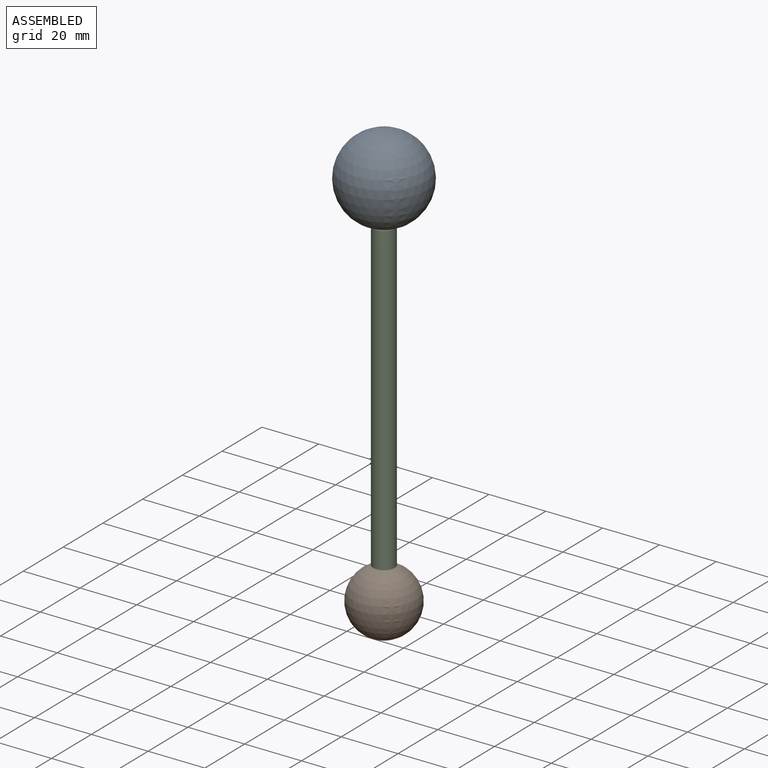
[diagram: assembled view]
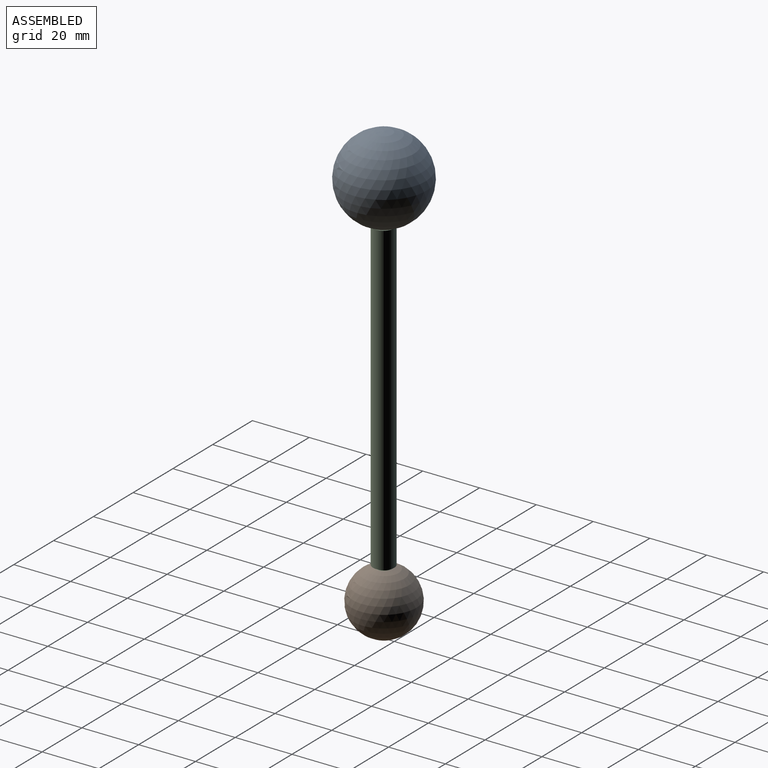
[diagram: assembled view, second angle]
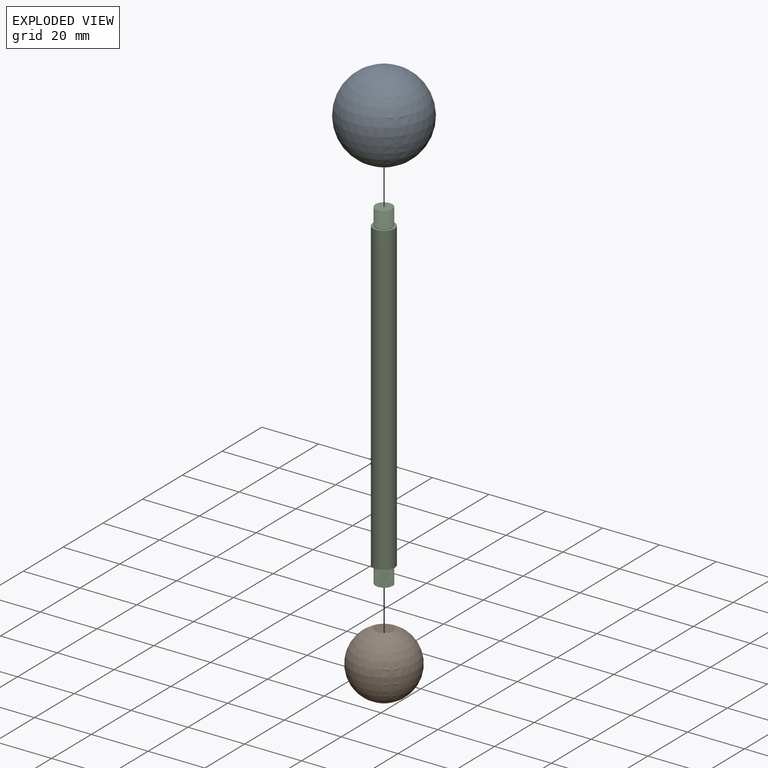
[diagram: exploded view]
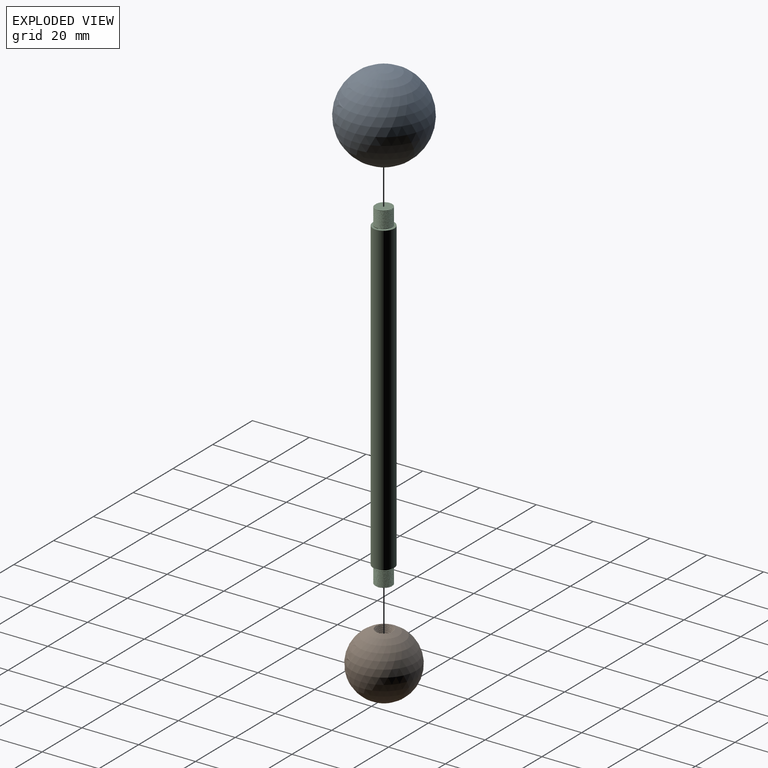
[diagram: exploded view, second angle]
ASSEMBLY  parts=3 mates=2
PART A: 19 faces, bbox 30x30x29.9 mm
  f0: cylinder r=3mm len=6mm, axis (0,0,1), area 5.8mm2, adj f1,f15,f16,f18
  f1: cylinder r=3mm len=6mm, axis (0,0,1), area 2.6mm2, adj f0,f2,f16,f17
  f2: cylinder r=3mm len=6mm, axis (0,0,1), area 2.6mm2, adj f1,f3,f16,f17
  f3: cylinder r=3mm len=6mm, axis (0,0,1), area 2.6mm2, adj f2,f4,f16,f17
  f4: cylinder r=3mm len=6mm, axis (0,0,1), area 2.6mm2, adj f3,f5,f16,f17
  f5: cylinder r=3mm len=6mm, axis (0,0,1), area 2.6mm2, adj f4,f6,f16,f17
  f6: cylinder r=3mm len=6mm, axis (0,0,1), area 2.6mm2, adj f5,f7,f16,f17
  f7: cylinder r=3mm len=6mm, axis (0,0,1), area 2.6mm2, adj f6,f8,f16,f17
  f8: cylinder r=3mm len=6mm, axis (0,0,1), area 2.6mm2, adj f7,f9,f16,f17
  f9: cylinder r=3mm len=6mm, axis (0,0,1), area 2.6mm2, adj f8,f10,f16,f17
  f10: cylinder r=3mm len=6mm, axis (0,0,1), area 2.6mm2, adj f9,f11,f16,f17
  f11: cylinder r=3mm len=6mm, axis (0,0,1), area 2.6mm2, adj f10,f12,f16,f17
  f12: cylinder r=3mm len=6mm, axis (0,0,1), area 2.4mm2, adj f11,f13,f14,f16,f17
  f13: cylinder r=3mm len=1.95mm, axis (0,0,1), area 0.1mm2, adj f12,f14,f17
  f14: sphere r=15mm, area 2797.1mm2, adj f12,f13,f16,f17
  f15: plane 6x6mm, normal (0,0,-1), area 28.3mm2, adj f0
  f16: bspline ~7.53x6.52mm, area 74.3mm2, adj f0,f1,f2,f3,f4,f5,f6,f7
  f17: bspline ~7.53x6.52mm, area 72.1mm2, adj f1,f2,f3,f4,f5,f6,f7,f8
  f18: plane 0.3x0.26mm, normal (0,-1,0), area 0mm2, adj f0,f16,f17
PART B: 18 faces, bbox 23x23x22.8 mm
  f0: cylinder r=3mm len=6mm, axis (0,0,1), area 7.5mm2, adj f1,f14,f15,f17
  f1: cylinder r=3mm len=6mm, axis (0,0,1), area 2.5mm2, adj f0,f2,f15,f16
  f2: cylinder r=3mm len=6mm, axis (0,0,1), area 2.5mm2, adj f1,f3,f15,f16
  f3: cylinder r=3mm len=6mm, axis (0,0,1), area 2.5mm2, adj f2,f4,f15,f16
  f4: cylinder r=3mm len=6mm, axis (0,0,1), area 2.5mm2, adj f3,f5,f15,f16
  f5: cylinder r=3mm len=6mm, axis (0,0,1), area 2.5mm2, adj f4,f6,f15,f16
  f6: cylinder r=3mm len=6mm, axis (0,0,1), area 2.5mm2, adj f5,f7,f15,f16
  f7: cylinder r=3mm len=6mm, axis (0,0,1), area 2.5mm2, adj f6,f8,f15,f16
  f8: cylinder r=3mm len=6mm, axis (0,0,1), area 2.5mm2, adj f7,f9,f15,f16
  f9: cylinder r=3mm len=6mm, axis (0,0,1), area 2.5mm2, adj f8,f10,f15,f16
  f10: cylinder r=3mm len=6mm, axis (0,0,1), area 2.5mm2, adj f9,f11,f15,f16
  f11: cylinder r=3mm len=6mm, axis (0,0,1), area 2.5mm2, adj f10,f12,f15,f16
  f12: cylinder r=3mm len=6mm, axis (0,0,1), area 1.8mm2, adj f11,f13,f15,f16
  f13: sphere r=11.5mm, area 1631.3mm2, adj f12,f15,f16
  f14: plane 6x6mm, normal (0,0,-1), area 28.3mm2, adj f0
  f15: bspline ~7.53x6.52mm, area 72.6mm2, adj f0,f1,f2,f3,f4,f5,f6,f7
  f16: bspline ~7.53x6.52mm, area 70.6mm2, adj f1,f2,f3,f4,f5,f6,f7,f8
  f17: plane 0.3x0.26mm, normal (0,-1,0), area 0mm2, adj f0,f15,f16
PART C: 17 faces, bbox 7.6x7.6x120.4 mm
  f0: plane 6.13x5.92mm, normal (0,0,1), area 27mm2, adj f2,f4,f6,f8
  f1: cylinder r=3.75mm len=108mm, axis (0,0,-1), area 2544.7mm2, adj f3,f11
  f2: cylinder r=3mm len=6mm, axis (0,0,1), area 41.9mm2, adj f0,f3,f4,f5,f6,f8
  f3: plane 7.5x7.5mm, normal (0,0,1), area 15.9mm2, adj f1,f2,f7
  f4: plane 0.11x0.07mm, normal (0,-1,0), area 0mm2, adj f0,f2,f6
  f5: plane 0.3x0.25mm, normal (0,1,0), area 0mm2, adj f2,f6,f7,f8
  f6: bspline ~6.93x6.17mm, area 70.4mm2, adj f0,f2,f4,f5,f7,f8
  f7: cylinder r=3mm len=2.51mm, axis (0,0,-1), area 0.1mm2, adj f3,f5,f6
  f8: bspline ~6.93x6.05mm, area 63.6mm2, adj f0,f2,f5,f6
  f9: plane 6.13x5.92mm, normal (0,0,-1), area 27mm2, adj f10,f12,f14,f16
  f10: cylinder r=3mm len=6mm, axis (0,0,-1), area 44.4mm2, adj f9,f11,f12,f13,f14,f16
  f11: plane 7.5x7.5mm, normal (0,0,-1), area 15.9mm2, adj f1,f10,f15
  f12: plane 0.11x0.07mm, normal (0,-1,0), area 0mm2, adj f9,f10,f14
  f13: plane 0.3x0.25mm, normal (0,1,0), area 0mm2, adj f10,f14,f15,f16
  f14: bspline ~6.93x6.17mm, area 70.4mm2, adj f9,f10,f12,f13,f15,f16
  f15: cylinder r=3mm len=2.51mm, axis (0,0,1), area 0.1mm2, adj f11,f13,f14
  f16: bspline ~6.93x6.05mm, area 63.6mm2, adj f9,f10,f13,f14
PLACE A t=(-1.35,3.45,74.97)mm
PLACE B rot(axis=(1,0,0),180deg) t=(-1.35,3.45,-62.63)mm
PLACE C t=(-1.32,3.35,6.17)mm
MATE fastened A.f0 <-> C.f0  axis (0,0,-1) through (-1.35,3.45,66.17)mm
MATE fastened B.f0 <-> C.f9  axis (0,0,1) through (-1.35,3.45,-53.83)mm
